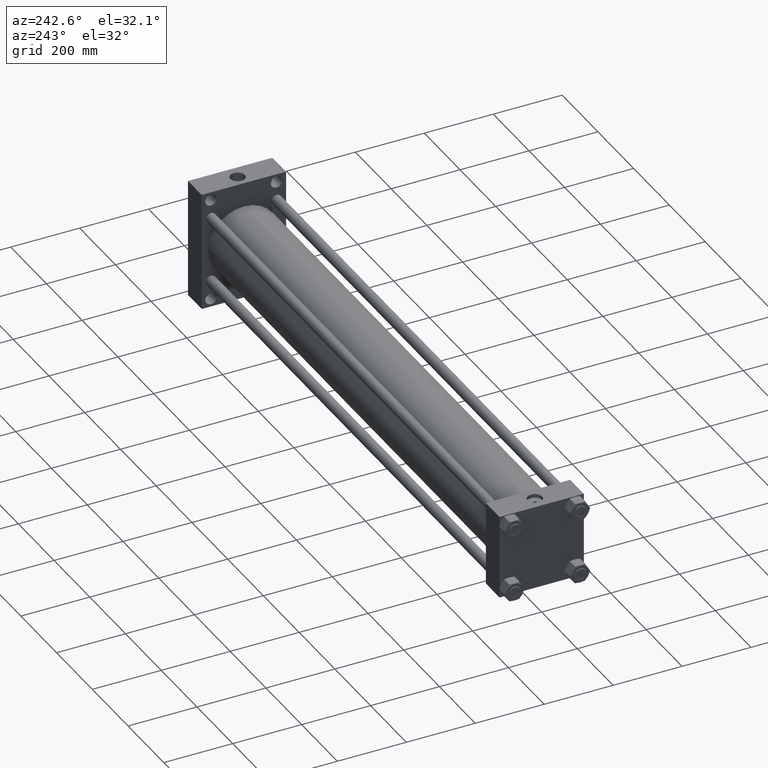
[diagram: clean part render]
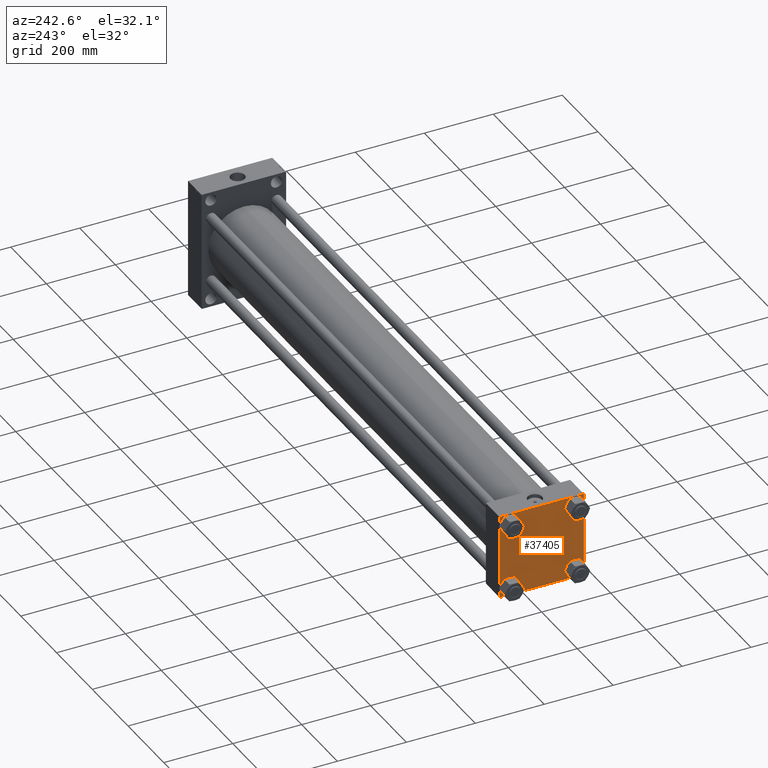
[diagram: same view with one face highlighted and labeled with its STEP entity id]
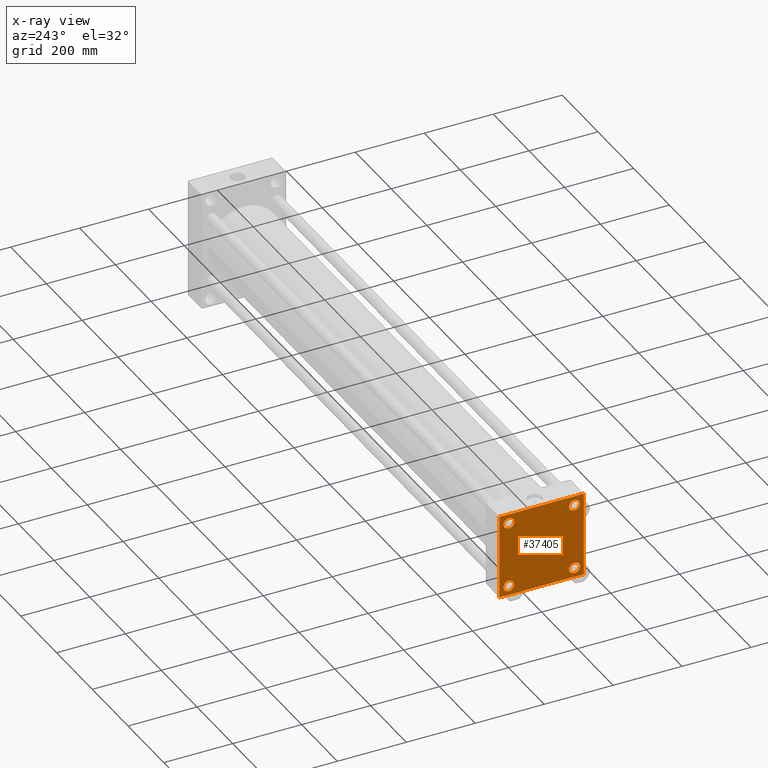
[diagram: x-ray of the same camera — body ghosted, the highlighted face saturated]
A machine part, auxiliary view. The second image highlights one B-rep face of the part: STEP entity #37405.
The next image is the same camera in x-ray: the body ghosted, the highlighted face saturated — about 0% of this face is hidden behind the body in this view.
In plain terms, the highlighted planar face has unit normal (-1, 0, 0).
Its self-contained STEP definition (entity closure, byte-faithful):
#19 = EDGE_CURVE ( 'NONE', #26418, #4347, #42957, .T. ) ;
#352 = CIRCLE ( 'NONE', #21126, 15.50000000000001421 ) ;
#555 = VERTEX_POINT ( 'NONE', #19934 ) ;
#1249 = VERTEX_POINT ( 'NONE', #11333 ) ;
#1396 = CARTESIAN_POINT ( 'NONE',  ( 0.000000000000000000, -122.4999999999999716, 122.5000000000000000 ) ) ;
#1920 = EDGE_LOOP ( 'NONE', ( #45212, #16717 ) ) ;
#2205 = CIRCLE ( 'NONE', #35287, 15.50000000000001421 ) ;
#2318 = DIRECTION ( 'NONE',  ( -0.000000000000000000, 0.7071067811865867636, 0.7071067811865082708 ) ) ;
#2507 = DIRECTION ( 'NONE',  ( 0.000000000000000000, 0.000000000000000000, 1.000000000000000000 ) ) ;
#2716 = VECTOR ( 'NONE', #37051, 1000.000000000000114 ) ;
#3797 = VERTEX_POINT ( 'NONE', #15165 ) ;
#4347 = VERTEX_POINT ( 'NONE', #11524 ) ;
#4526 = DIRECTION ( 'NONE',  ( 1.000000000000000000, -0.000000000000000000, -0.000000000000000000 ) ) ;
#5510 = VERTEX_POINT ( 'NONE', #22008 ) ;
#5625 = EDGE_CURVE ( 'NONE', #35625, #43917, #37452, .T. ) ;
#5696 = VECTOR ( 'NONE', #14067, 1000.000000000000000 ) ;
#5789 = FACE_BOUND ( 'NONE', #27712, .T. ) ;
#5820 = DIRECTION ( 'NONE',  ( 0.000000000000000000, 0.000000000000000000, 1.000000000000000000 ) ) ;
#5835 = EDGE_CURVE ( 'NONE', #3797, #41680, #24042, .T. ) ;
#6036 = DIRECTION ( 'NONE',  ( -1.000000000000000000, 0.000000000000000000, 0.000000000000000000 ) ) ;
#6292 = AXIS2_PLACEMENT_3D ( 'NONE', #23650, #6036, #46266 ) ;
#8246 = EDGE_CURVE ( 'NONE', #4347, #29219, #17538, .T. ) ;
#9645 = PLANE ( 'NONE',  #6292 ) ;
#9717 = AXIS2_PLACEMENT_3D ( 'NONE', #24573, #39252, #35643 ) ;
#10080 = CARTESIAN_POINT ( 'NONE',  ( 0.000000000000000000, 122.0000000000000568, -122.5000000000000000 ) ) ;
#10550 = DIRECTION ( 'NONE',  ( 1.000000000000000000, -0.000000000000000000, -0.000000000000000000 ) ) ;
#10692 = CARTESIAN_POINT ( 'NONE',  ( 0.000000000000000000, 122.2499999999932641, 122.2500000000068496 ) ) ;
#10832 = ORIENTED_EDGE ( 'NONE', *, *, #37782, .T. ) ;
#11269 = CARTESIAN_POINT ( 'NONE',  ( 0.000000000000000000, -122.2500000000000142, -122.2500000000000142 ) ) ;
#11333 = CARTESIAN_POINT ( 'NONE',  ( 0.000000000000000000, 95.09999999999999432, 110.6000000000000369 ) ) ;
#11476 = CARTESIAN_POINT ( 'NONE',  ( 0.000000000000000000, 122.0000000000000568, 122.5000000000000284 ) ) ;
#11524 = CARTESIAN_POINT ( 'NONE',  ( 0.000000000000000000, 122.5000000000000568, 122.0000000000000853 ) ) ;
#11690 = EDGE_CURVE ( 'NONE', #20124, #14643, #39523, .T. ) ;
#11985 = DIRECTION ( 'NONE',  ( 1.000000000000000000, -0.000000000000000000, -0.000000000000000000 ) ) ;
#12313 = CARTESIAN_POINT ( 'NONE',  ( 0.000000000000000000, -95.09999999999996589, 79.60000000000003695 ) ) ;
#12373 = CARTESIAN_POINT ( 'NONE',  ( 0.000000000000000000, 95.09999999999999432, 95.10000000000002274 ) ) ;
#12860 = VECTOR ( 'NONE', #30803, 1000.000000000000000 ) ;
#12888 = ORIENTED_EDGE ( 'NONE', *, *, #5835, .F. ) ;
#13030 = CARTESIAN_POINT ( 'NONE',  ( 0.000000000000000000, -122.5000000000000000, -122.0000000000000568 ) ) ;
#13335 = ORIENTED_EDGE ( 'NONE', *, *, #19052, .F. ) ;
#13967 = EDGE_CURVE ( 'NONE', #5510, #17652, #352, .T. ) ;
#14067 = DIRECTION ( 'NONE',  ( 0.000000000000000000, 0.7071067811865868746, -0.7071067811865081598 ) ) ;
#14140 = DIRECTION ( 'NONE',  ( 0.000000000000000000, 0.000000000000000000, 1.000000000000000000 ) ) ;
#14606 = VERTEX_POINT ( 'NONE', #40536 ) ;
#14643 = VERTEX_POINT ( 'NONE', #43589 ) ;
#14768 = AXIS2_PLACEMENT_3D ( 'NONE', #36088, #10550, #21391 ) ;
#14869 = LINE ( 'NONE', #30052, #19711 ) ;
#15165 = CARTESIAN_POINT ( 'NONE',  ( 0.000000000000000000, -122.4999999999999716, 122.0000000000001137 ) ) ;
#15169 = EDGE_CURVE ( 'NONE', #43917, #35625, #28115, .T. ) ;
#15601 = CARTESIAN_POINT ( 'NONE',  ( 0.000000000000000000, -95.09999999999996589, 95.10000000000005116 ) ) ;
#15950 = VECTOR ( 'NONE', #16827, 1000.000000000000000 ) ;
#16302 = CIRCLE ( 'NONE', #14768, 15.50000000000001421 ) ;
#16563 = EDGE_CURVE ( 'NONE', #17247, #41680, #18730, .T. ) ;
#16717 = ORIENTED_EDGE ( 'NONE', *, *, #31366, .T. ) ;
#16755 = CARTESIAN_POINT ( 'NONE',  ( 0.000000000000000000, 95.09999999999999432, -79.60000000000000853 ) ) ;
#16827 = DIRECTION ( 'NONE',  ( 0.000000000000000000, 0.000000000000000000, -1.000000000000000000 ) ) ;
#16877 = FACE_OUTER_BOUND ( 'NONE', #36372, .T. ) ;
#17247 = VERTEX_POINT ( 'NONE', #39579 ) ;
#17396 = ORIENTED_EDGE ( 'NONE', *, *, #16563, .T. ) ;
#17538 = LINE ( 'NONE', #20687, #15950 ) ;
#17652 = VERTEX_POINT ( 'NONE', #12313 ) ;
#17683 = DIRECTION ( 'NONE',  ( 1.000000000000000000, -0.000000000000000000, -0.000000000000000000 ) ) ;
#18730 = LINE ( 'NONE', #11269, #2716 ) ;
#19032 = AXIS2_PLACEMENT_3D ( 'NONE', #47128, #36773, #14140 ) ;
#19052 = EDGE_CURVE ( 'NONE', #26418, #14606, #34829, .T. ) ;
#19215 = DIRECTION ( 'NONE',  ( 0.000000000000000000, 0.000000000000000000, 1.000000000000000000 ) ) ;
#19263 = LINE ( 'NONE', #30349, #21670 ) ;
#19461 = DIRECTION ( 'NONE',  ( 0.000000000000000000, 0.000000000000000000, 1.000000000000000000 ) ) ;
#19711 = VECTOR ( 'NONE', #30283, 1000.000000000000114 ) ;
#19934 = CARTESIAN_POINT ( 'NONE',  ( 0.000000000000000000, 95.09999999999999432, 79.60000000000000853 ) ) ;
#20124 = VERTEX_POINT ( 'NONE', #16755 ) ;
#20687 = CARTESIAN_POINT ( 'NONE',  ( 0.000000000000000000, 122.5000000000000568, 122.5000000000000284 ) ) ;
#21126 = AXIS2_PLACEMENT_3D ( 'NONE', #15601, #11985, #19215 ) ;
#21391 = DIRECTION ( 'NONE',  ( 0.000000000000000000, 0.000000000000000000, 1.000000000000000000 ) ) ;
#21526 = EDGE_CURVE ( 'NONE', #29219, #22425, #14869, .T. ) ;
#21670 = VECTOR ( 'NONE', #23133, 1000.000000000000000 ) ;
#22008 = CARTESIAN_POINT ( 'NONE',  ( 0.000000000000000000, -95.09999999999996589, 110.6000000000000654 ) ) ;
#22423 = ORIENTED_EDGE ( 'NONE', *, *, #15169, .T. ) ;
#22425 = VERTEX_POINT ( 'NONE', #10080 ) ;
#23133 = DIRECTION ( 'NONE',  ( 0.000000000000000000, -1.000000000000000000, -2.265761274745216987E-16 ) ) ;
#23540 = EDGE_CURVE ( 'NONE', #1249, #555, #45941, .T. ) ;
#23650 = CARTESIAN_POINT ( 'NONE',  ( 0.000000000000000000, 0.000000000000000000, 0.000000000000000000 ) ) ;
#24042 = LINE ( 'NONE', #1396, #12860 ) ;
#24246 = CARTESIAN_POINT ( 'NONE',  ( 0.000000000000000000, -122.2499999999932641, 122.2500000000068212 ) ) ;
#24573 = CARTESIAN_POINT ( 'NONE',  ( 0.000000000000000000, -95.09999999999996589, -95.10000000000005116 ) ) ;
#26418 = VERTEX_POINT ( 'NONE', #11476 ) ;
#26633 = ORIENTED_EDGE ( 'NONE', *, *, #26811, .T. ) ;
#26724 = CARTESIAN_POINT ( 'NONE',  ( 0.000000000000000000, -95.09999999999996589, -79.60000000000003695 ) ) ;
#26811 = EDGE_CURVE ( 'NONE', #555, #1249, #2205, .T. ) ;
#27265 = FACE_BOUND ( 'NONE', #40370, .T. ) ;
#27503 = FACE_BOUND ( 'NONE', #32697, .T. ) ;
#27712 = EDGE_LOOP ( 'NONE', ( #28093, #10832 ) ) ;
#27868 = LINE ( 'NONE', #24246, #42260 ) ;
#28093 = ORIENTED_EDGE ( 'NONE', *, *, #11690, .T. ) ;
#28115 = CIRCLE ( 'NONE', #41920, 15.50000000000001421 ) ;
#29197 = EDGE_CURVE ( 'NONE', #3797, #14606, #27868, .T. ) ;
#29219 = VERTEX_POINT ( 'NONE', #35322 ) ;
#30052 = CARTESIAN_POINT ( 'NONE',  ( 0.000000000000000000, 122.2500000000000142, -122.2500000000000142 ) ) ;
#30283 = DIRECTION ( 'NONE',  ( -0.000000000000000000, -0.7071067811865474617, -0.7071067811865474617 ) ) ;
#30349 = CARTESIAN_POINT ( 'NONE',  ( 0.000000000000000000, 122.5000000000000568, -122.5000000000000000 ) ) ;
#30803 = DIRECTION ( 'NONE',  ( 0.000000000000000000, -1.132880637372608493E-16, -1.000000000000000000 ) ) ;
#31146 = DIRECTION ( 'NONE',  ( 1.000000000000000000, -0.000000000000000000, -0.000000000000000000 ) ) ;
#31220 = CARTESIAN_POINT ( 'NONE',  ( 0.000000000000000000, 122.5000000000000568, 122.5000000000000284 ) ) ;
#31366 = EDGE_CURVE ( 'NONE', #17652, #5510, #34707, .T. ) ;
#32697 = EDGE_LOOP ( 'NONE', ( #43020, #22423 ) ) ;
#34707 = CIRCLE ( 'NONE', #35464, 15.50000000000001421 ) ;
#34725 = FACE_BOUND ( 'NONE', #1920, .T. ) ;
#34829 = LINE ( 'NONE', #31220, #41305 ) ;
#34923 = AXIS2_PLACEMENT_3D ( 'NONE', #47069, #17683, #2507 ) ;
#35287 = AXIS2_PLACEMENT_3D ( 'NONE', #12373, #31146, #5820 ) ;
#35322 = CARTESIAN_POINT ( 'NONE',  ( 0.000000000000000000, 122.5000000000000568, -121.9999999999999432 ) ) ;
#35464 = AXIS2_PLACEMENT_3D ( 'NONE', #37783, #4526, #19461 ) ;
#35625 = VERTEX_POINT ( 'NONE', #26724 ) ;
#35643 = DIRECTION ( 'NONE',  ( 0.000000000000000000, 0.000000000000000000, 1.000000000000000000 ) ) ;
#36088 = CARTESIAN_POINT ( 'NONE',  ( 0.000000000000000000, 95.09999999999999432, -95.10000000000002274 ) ) ;
#36372 = EDGE_LOOP ( 'NONE', ( #44205, #37715, #44215, #17396, #12888, #39612, #13335, #44790 ) ) ;
#36773 = DIRECTION ( 'NONE',  ( 1.000000000000000000, -0.000000000000000000, -0.000000000000000000 ) ) ;
#37051 = DIRECTION ( 'NONE',  ( 0.000000000000000000, -0.7071067811865474617, 0.7071067811865474617 ) ) ;
#37389 = CARTESIAN_POINT ( 'NONE',  ( 0.000000000000000000, -95.09999999999996589, -95.10000000000005116 ) ) ;
#37405 = ADVANCED_FACE ( 'NONE', ( #34725, #27503, #5789, #27265, #16877 ), #9645, .T. ) ;
#37452 = CIRCLE ( 'NONE', #9717, 15.50000000000001421 ) ;
#37621 = EDGE_CURVE ( 'NONE', #22425, #17247, #19263, .T. ) ;
#37636 = DIRECTION ( 'NONE',  ( 1.000000000000000000, -0.000000000000000000, -0.000000000000000000 ) ) ;
#37715 = ORIENTED_EDGE ( 'NONE', *, *, #21526, .T. ) ;
#37782 = EDGE_CURVE ( 'NONE', #14643, #20124, #16302, .T. ) ;
#37783 = CARTESIAN_POINT ( 'NONE',  ( 0.000000000000000000, -95.09999999999996589, 95.10000000000005116 ) ) ;
#39252 = DIRECTION ( 'NONE',  ( 1.000000000000000000, -0.000000000000000000, -0.000000000000000000 ) ) ;
#39523 = CIRCLE ( 'NONE', #34923, 15.50000000000001421 ) ;
#39579 = CARTESIAN_POINT ( 'NONE',  ( 0.000000000000000000, -122.0000000000000000, -122.5000000000000568 ) ) ;
#39612 = ORIENTED_EDGE ( 'NONE', *, *, #29197, .T. ) ;
#40328 = CARTESIAN_POINT ( 'NONE',  ( 0.000000000000000000, -95.09999999999996589, -110.6000000000000654 ) ) ;
#40370 = EDGE_LOOP ( 'NONE', ( #40645, #26633 ) ) ;
#40536 = CARTESIAN_POINT ( 'NONE',  ( 0.000000000000000000, -121.9999999999999716, 122.5000000000000000 ) ) ;
#40645 = ORIENTED_EDGE ( 'NONE', *, *, #23540, .T. ) ;
#41305 = VECTOR ( 'NONE', #45891, 1000.000000000000000 ) ;
#41680 = VERTEX_POINT ( 'NONE', #13030 ) ;
#41920 = AXIS2_PLACEMENT_3D ( 'NONE', #37389, #37636, #45314 ) ;
#42260 = VECTOR ( 'NONE', #2318, 1000.000000000000114 ) ;
#42957 = LINE ( 'NONE', #10692, #5696 ) ;
#43020 = ORIENTED_EDGE ( 'NONE', *, *, #5625, .T. ) ;
#43589 = CARTESIAN_POINT ( 'NONE',  ( 0.000000000000000000, 95.09999999999999432, -110.6000000000000369 ) ) ;
#43917 = VERTEX_POINT ( 'NONE', #40328 ) ;
#44205 = ORIENTED_EDGE ( 'NONE', *, *, #8246, .T. ) ;
#44215 = ORIENTED_EDGE ( 'NONE', *, *, #37621, .T. ) ;
#44790 = ORIENTED_EDGE ( 'NONE', *, *, #19, .T. ) ;
#45212 = ORIENTED_EDGE ( 'NONE', *, *, #13967, .T. ) ;
#45314 = DIRECTION ( 'NONE',  ( 0.000000000000000000, 0.000000000000000000, 1.000000000000000000 ) ) ;
#45891 = DIRECTION ( 'NONE',  ( 0.000000000000000000, -1.000000000000000000, -1.132880637372608740E-16 ) ) ;
#45941 = CIRCLE ( 'NONE', #19032, 15.50000000000001421 ) ;
#46266 = DIRECTION ( 'NONE',  ( 0.000000000000000000, 0.000000000000000000, 1.000000000000000000 ) ) ;
#47069 = CARTESIAN_POINT ( 'NONE',  ( 0.000000000000000000, 95.09999999999999432, -95.10000000000002274 ) ) ;
#47128 = CARTESIAN_POINT ( 'NONE',  ( 0.000000000000000000, 95.09999999999999432, 95.10000000000002274 ) ) ;